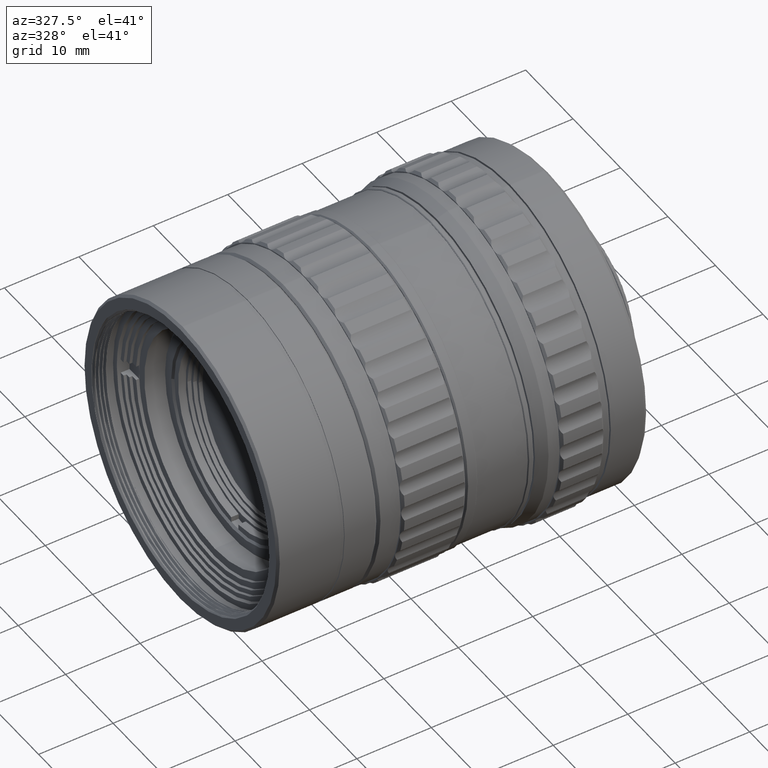
[diagram: clean part render]
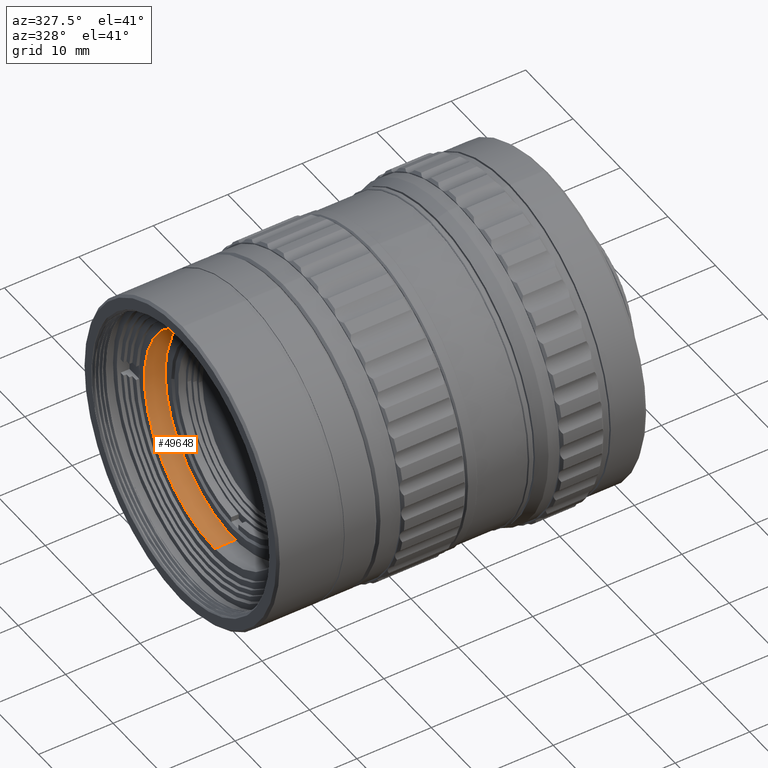
[diagram: same view with one face highlighted and labeled with its STEP entity id]
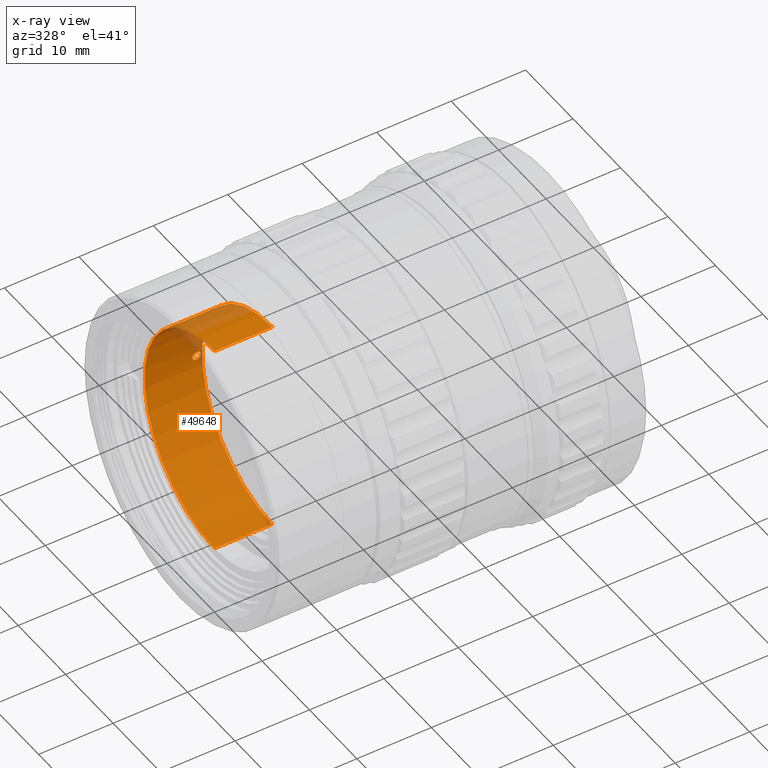
[diagram: x-ray of the same camera — body ghosted, the highlighted face saturated]
A machine part, auxiliary view. The second image highlights one B-rep face of the part: STEP entity #49648.
The next image is the same camera in x-ray: the body ghosted, the highlighted face saturated — about 10% of this face is hidden behind the body in this view.
In plain terms, the highlighted cylindrical surface (partial cylindrical patch) has radius 14.8 mm, axis along (1, -0, 0).
Its self-contained STEP definition (entity closure, byte-faithful):
#2979 = LINE ( 'NONE', #35658, #52057 ) ;
#3551 = CARTESIAN_POINT ( 'NONE',  ( 7.764365115893872904, 1.812477262738082480E-15, 14.80000000000000071 ) ) ;
#6495 = CARTESIAN_POINT ( 'NONE',  ( 6.999999999999243272, 14.78977687458441892, -0.5500000000071982864 ) ) ;
#7329 = ORIENTED_EDGE ( 'NONE', *, *, #96594, .T. ) ;
#7697 = CARTESIAN_POINT ( 'NONE',  ( -1.387778780781445676E-14, 1.812477262738082480E-15, 14.80000000000000071 ) ) ;
#7745 = CARTESIAN_POINT ( 'NONE',  ( 7.143478637203866555, 14.78977687458467827, -0.5500000000002968070 ) ) ;
#12302 = EDGE_CURVE ( 'NONE', #90730, #17171, #56521, .T. ) ;
#14142 = AXIS2_PLACEMENT_3D ( 'NONE', #35561, #52773, #85512 ) ;
#14534 = CARTESIAN_POINT ( 'NONE',  ( 6.712894723443972644, 14.79221510979674292, 0.4905702813764004633 ) ) ;
#15487 = CARTESIAN_POINT ( 'NONE',  ( -1.387778780781445676E-14, 0.000000000000000000, -14.80000000000000071 ) ) ;
#16319 = CARTESIAN_POINT ( 'NONE',  ( 7.143478581947347195, 14.78977687458470136, 0.5499999999997026157 ) ) ;
#17171 = VERTEX_POINT ( 'NONE', #3551 ) ;
#18990 = DIRECTION ( 'NONE',  ( -1.000000000000000000, 0.000000000000000000, -0.000000000000000000 ) ) ;
#19059 = EDGE_CURVE ( 'NONE', #26482, #22001, #61484, .T. ) ;
#19660 = ORIENTED_EDGE ( 'NONE', *, *, #19059, .T. ) ;
#20850 = ORIENTED_EDGE ( 'NONE', *, *, #26026, .T. ) ;
#22001 = VERTEX_POINT ( 'NONE', #68529 ) ;
#22707 = CIRCLE ( 'NONE', #14142, 14.80000000000000071 ) ;
#22922 = VERTEX_POINT ( 'NONE', #56674 ) ;
#26026 = EDGE_CURVE ( 'NONE', #22922, #17171, #22707, .T. ) ;
#26482 = VERTEX_POINT ( 'NONE', #43507 ) ;
#27038 = CARTESIAN_POINT ( 'NONE',  ( -1.387778780781445676E-14, 0.000000000000000000, 0.000000000000000000 ) ) ;
#31817 = EDGE_LOOP ( 'NONE', ( #86311, #93564, #7329, #20850 ) ) ;
#35561 = CARTESIAN_POINT ( 'NONE',  ( 7.764365115893872904, 0.000000000000000000, 0.000000000000000000 ) ) ;
#35658 = CARTESIAN_POINT ( 'NONE',  ( -1.387778780781445676E-14, 0.000000000000000000, -14.80000000000000071 ) ) ;
#38634 = CARTESIAN_POINT ( 'NONE',  ( 6.450100326447387289, 14.79999627165317655, 0.1457045122540874260 ) ) ;
#42452 = B_SPLINE_CURVE_WITH_KNOTS ( 'NONE', 3,
 ( #6495, #98051, #54787, #87519, #88051, #38634, #47247, #14534, #106068, #80014 ),
 .UNSPECIFIED., .F., .F.,
 ( 4, 2, 2, 2, 4 ),
 ( 0.0008600448930343314010, 0.001289880585513531732, 0.001719716277992732172, 0.002149551970471932395, 0.002579387662951132618 ),
 .UNSPECIFIED. ) ;
#43507 = CARTESIAN_POINT ( 'NONE',  ( 7.000000000000757616, 14.78977687458442070, 0.5500000000071982864 ) ) ;
#43731 = DIRECTION ( 'NONE',  ( 1.000000000000000000, -0.000000000000000000, 0.000000000000000000 ) ) ;
#46952 = EDGE_CURVE ( 'NONE', #90730, #102549, #84095, .T. ) ;
#47247 = CARTESIAN_POINT ( 'NONE',  ( 6.509831200421281494, 14.79754925204688298, 0.2877901817567662390 ) ) ;
#49034 = CARTESIAN_POINT ( 'NONE',  ( 7.491571253591067681, 14.79758787717819679, 0.2862539320525443465 ) ) ;
#49648 = ADVANCED_FACE ( 'NONE', ( #96425, #54058 ), #63695, .F. ) ;
#52057 = VECTOR ( 'NONE', #43731, 1000.000000000000000 ) ;
#52773 = DIRECTION ( 'NONE',  ( 1.000000000000000000, -0.000000000000000000, 0.000000000000000000 ) ) ;
#54058 = FACE_BOUND ( 'NONE', #85470, .T. ) ;
#54787 = CARTESIAN_POINT ( 'NONE',  ( 6.713782957685752173, 14.79218999600861828, -0.4915927522212542589 ) ) ;
#55650 = CARTESIAN_POINT ( 'NONE',  ( -1.387778780781445676E-14, 0.000000000000000000, 0.000000000000000000 ) ) ;
#56521 = LINE ( 'NONE', #7697, #66106 ) ;
#56674 = CARTESIAN_POINT ( 'NONE',  ( 7.764365115893872904, 0.000000000000000000, -14.80000000000000071 ) ) ;
#61484 = B_SPLINE_CURVE_WITH_KNOTS ( 'NONE', 3,
 ( #81275, #16319, #74810, #49034, #73235, #82848, #99447, #98408, #7745, #65153 ),
 .UNSPECIFIED., .F., .F.,
 ( 4, 2, 2, 2, 4 ),
 ( 0.002579387662951132618, 0.003009223355358390389, 0.003439059047765648594, 0.003868894740172906365, 0.004298730432580164136 ),
 .UNSPECIFIED. ) ;
#62641 = DIRECTION ( 'NONE',  ( 1.000000000000000000, -0.000000000000000000, 0.000000000000000000 ) ) ;
#63695 = CYLINDRICAL_SURFACE ( 'NONE', #82593, 14.80000000000000071 ) ;
#65153 = CARTESIAN_POINT ( 'NONE',  ( 6.999999999999243272, 14.78977687458441892, -0.5500000000071982864 ) ) ;
#66106 = VECTOR ( 'NONE', #98362, 1000.000000000000000 ) ;
#67691 = ORIENTED_EDGE ( 'NONE', *, *, #70004, .T. ) ;
#68529 = CARTESIAN_POINT ( 'NONE',  ( 6.999999999999243272, 14.78977687458441892, -0.5500000000071982864 ) ) ;
#70004 = EDGE_CURVE ( 'NONE', #22001, #26482, #42452, .T. ) ;
#72110 = AXIS2_PLACEMENT_3D ( 'NONE', #27038, #18990, #102144 ) ;
#73235 = CARTESIAN_POINT ( 'NONE',  ( 7.550099976589352835, 14.80000371534534409, 0.1449465151617342351 ) ) ;
#74810 = CARTESIAN_POINT ( 'NONE',  ( 7.286216937040596697, 14.79218999406453605, 0.4915927948248798307 ) ) ;
#78492 = CARTESIAN_POINT ( 'NONE',  ( -1.387778780781445676E-14, 1.812477262738082480E-15, 14.80000000000000071 ) ) ;
#80014 = CARTESIAN_POINT ( 'NONE',  ( 7.000000000000757616, 14.78977687458442070, 0.5500000000071982864 ) ) ;
#81275 = CARTESIAN_POINT ( 'NONE',  ( 7.000000000000757616, 14.78977687458442070, 0.5500000000071982864 ) ) ;
#82593 = AXIS2_PLACEMENT_3D ( 'NONE', #55650, #62641, #86790 ) ;
#82848 = CARTESIAN_POINT ( 'NONE',  ( 7.549899762429473249, 14.79999627495603143, -0.1457042476427737043 ) ) ;
#84095 = CIRCLE ( 'NONE', #72110, 14.80000000000000071 ) ;
#85470 = EDGE_LOOP ( 'NONE', ( #19660, #67691 ) ) ;
#85512 = DIRECTION ( 'NONE',  ( 0.000000000000000000, 0.000000000000000000, -1.000000000000000000 ) ) ;
#86311 = ORIENTED_EDGE ( 'NONE', *, *, #12302, .F. ) ;
#86790 = DIRECTION ( 'NONE',  ( 0.000000000000000000, 0.000000000000000000, -1.000000000000000000 ) ) ;
#87519 = CARTESIAN_POINT ( 'NONE',  ( 6.508428614311480231, 14.79758788147358395, -0.2862537373028585796 ) ) ;
#88051 = CARTESIAN_POINT ( 'NONE',  ( 6.449899934996446760, 14.80000371863100561, -0.1449461084250172616 ) ) ;
#90730 = VERTEX_POINT ( 'NONE', #78492 ) ;
#93564 = ORIENTED_EDGE ( 'NONE', *, *, #46952, .T. ) ;
#96425 = FACE_OUTER_BOUND ( 'NONE', #31817, .T. ) ;
#96594 = EDGE_CURVE ( 'NONE', #102549, #22922, #2979, .T. ) ;
#98051 = CARTESIAN_POINT ( 'NONE',  ( 6.856521362769839811, 14.78977687458470136, -0.5499999999997026157 ) ) ;
#98362 = DIRECTION ( 'NONE',  ( 1.000000000000000000, -0.000000000000000000, 0.000000000000000000 ) ) ;
#98408 = CARTESIAN_POINT ( 'NONE',  ( 7.287105383533200254, 14.79221511180270809, -0.4905702356460253100 ) ) ;
#99447 = CARTESIAN_POINT ( 'NONE',  ( 7.490168927120719466, 14.79754925620135531, -0.2877899932952263651 ) ) ;
#102144 = DIRECTION ( 'NONE',  ( 0.000000000000000000, 0.000000000000000000, -1.000000000000000000 ) ) ;
#102549 = VERTEX_POINT ( 'NONE', #15487 ) ;
#106068 = CARTESIAN_POINT ( 'NONE',  ( 6.856521418030916415, 14.78977687458467649, 0.5500000000002968070 ) ) ;